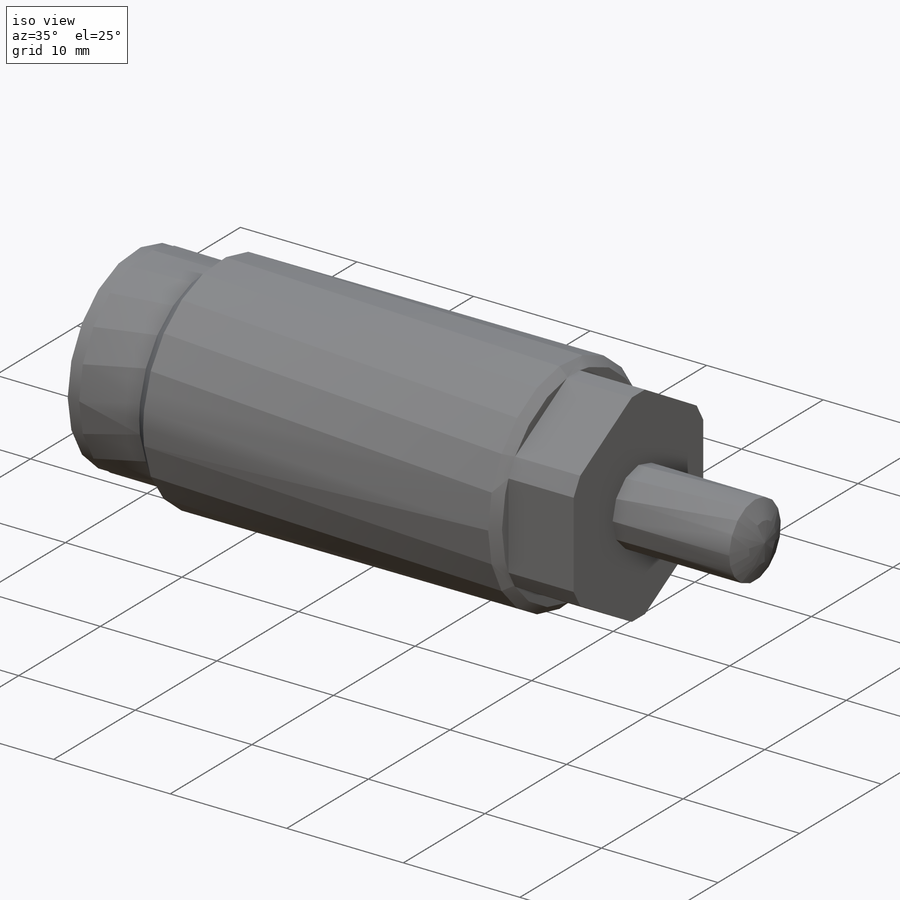
[diagram: iso view]
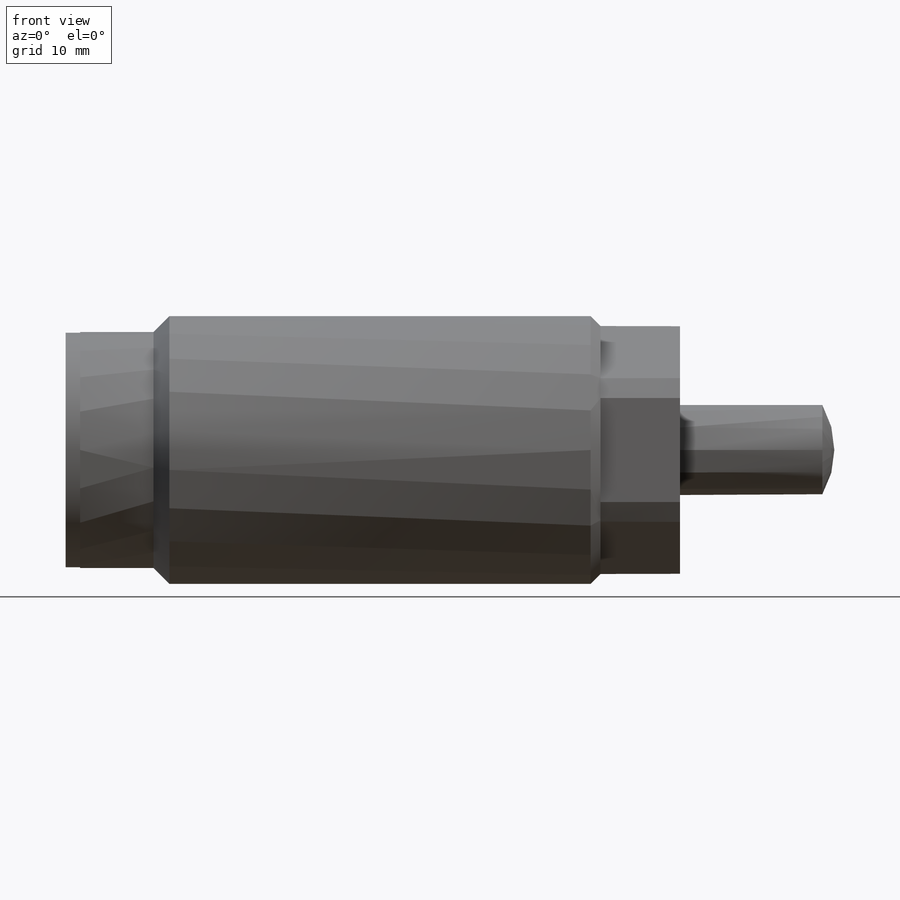
[diagram: front view]
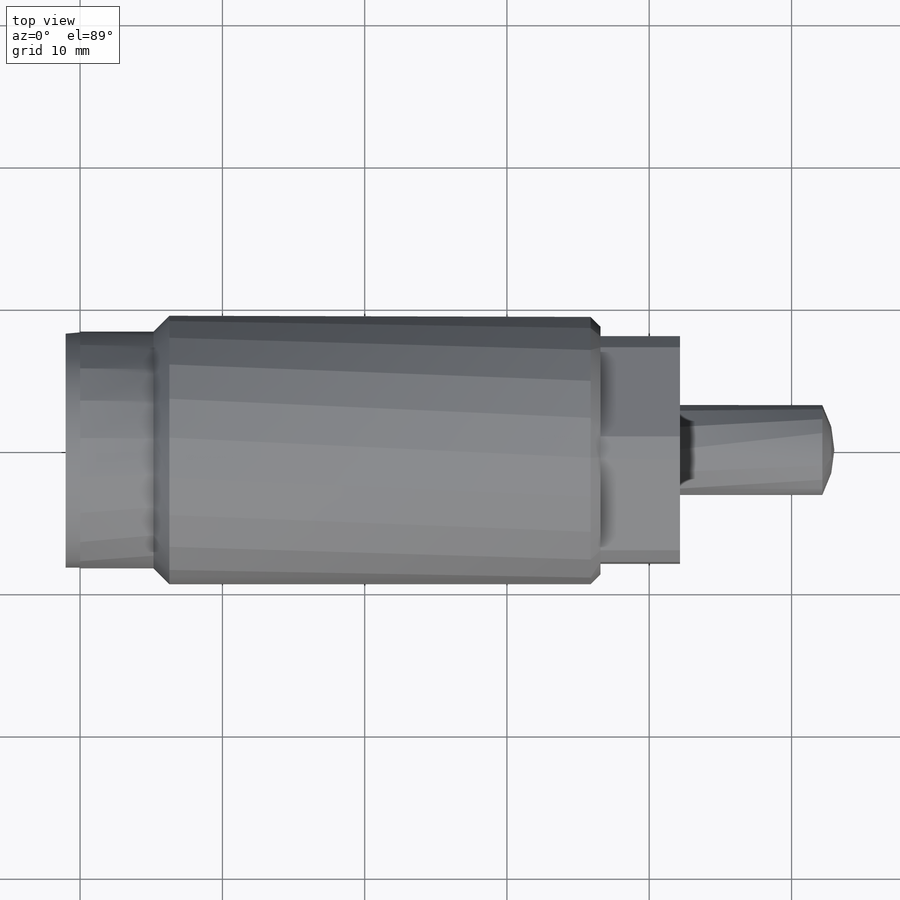
[diagram: top view]
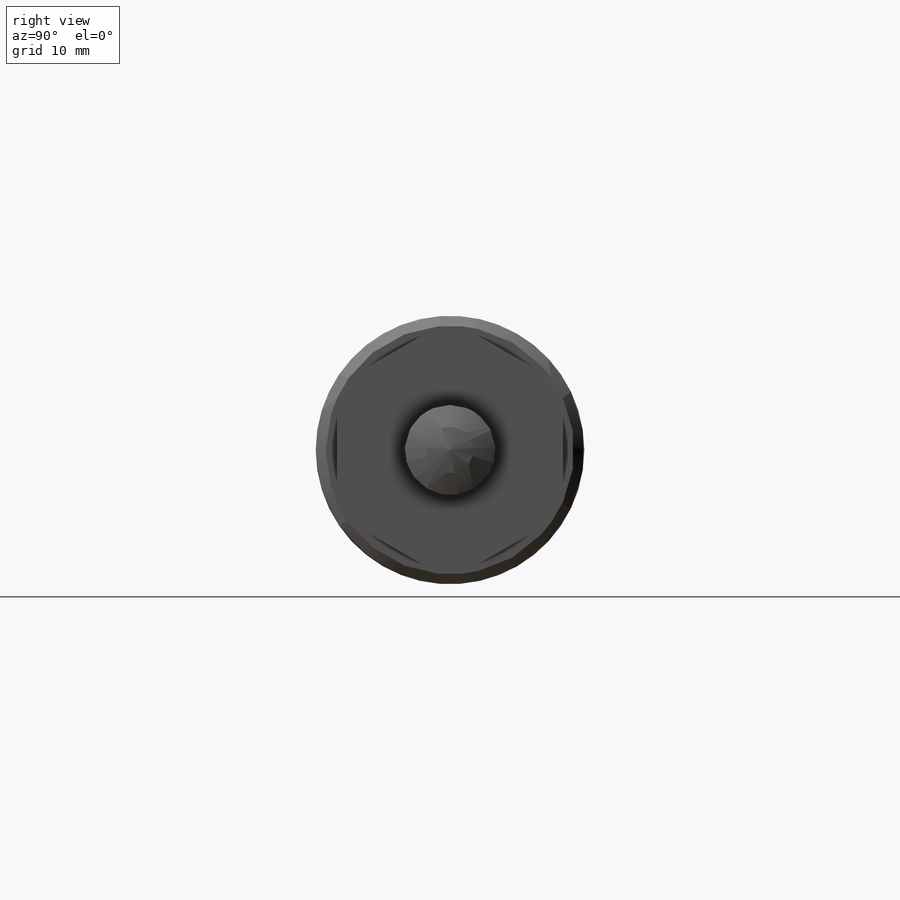
[diagram: right view]
SOLIDWORKS PART (.sldprt)
format: sldprt  version: not decoded by parser v0  size: 338,944 bytes
history: native  units: mm
features: sketch x8, cut_revolve x4, revolve x3, material x1, thread x1, cut_extrude x1 (+11 scaffold rows collapsed)
feature tree (29):
  scaffold x11  (default folders/planes/origin — collapsed)
  material  "Alloy Steel"
  sketch  "Sketch1"  dims[D1=42.164mm D2=18.8722mm]
  revolve  "Revolve1"  Angle=360deg
  sketch  "Sketch2"  dims[D1=1.016mm D2=7.9248mm]
  cut_revolve  "Cut-Revolve1"  Angle=360deg
  sketch  "Sketch3"  dims[c1.D1=16.637mm c1.D2=5.1562mm c1.D3=42.164mm c2.D3=45.0deg]
  cut_revolve  "Cut-Revolve2"  [1 undecoded]
  thread  "Cosmetic Thread1"  Diameter=15.637mm  [1 undecoded]
  sketch  "Sketch4"  dims[c1.D1=17.4752mm c1.D2=5.588mm c1.D3=~0.842749mm c2.D3=~124.020764deg c3.D3=~6.059513mm c4.D3=45.0deg]
  cut_revolve  "Cut-Revolve3"  Angle=360deg
  sketch  "Sketch5"  dims[c1.D2=15.875mm c1.D1=15.875mm c2.D2=~4.495481mm c3.D2=120.0deg c3.D3=~4.875381mm c4.D3=120.0deg c4.D2=~5.955477mm c5.D2=120.0deg c5.D3=~4.531903mm c6.D3=120.0deg]
  cut_extrude  "Cut-Extrude5"  Depth=5.588mm
  sketch  "Sketch6"  dims[D1=53.0098mm D2=6.3246mm]
  revolve  "Revolve3"  Angle=360deg
  sketch  "Sketch7"  dims[D1=6.35mm]
  cut_revolve  "Cut-Revolve5"  Angle=360deg
  sketch  "Sketch8"  dims[c1.D1=1.016mm c1.D2=16.637mm c2.D1=1.016mm c2.D2=16.5354mm c2.D3=11.4808mm]
  revolve  "Revolve4"  Angle=360deg
decode coverage: 16 of 17 modeling features carry decoded parameters
note: ~ marks probable driven/reference dimensions
note: 2 parameter values undecoded
note: suppression state not decoded; provenance and decode notes live in map.json
